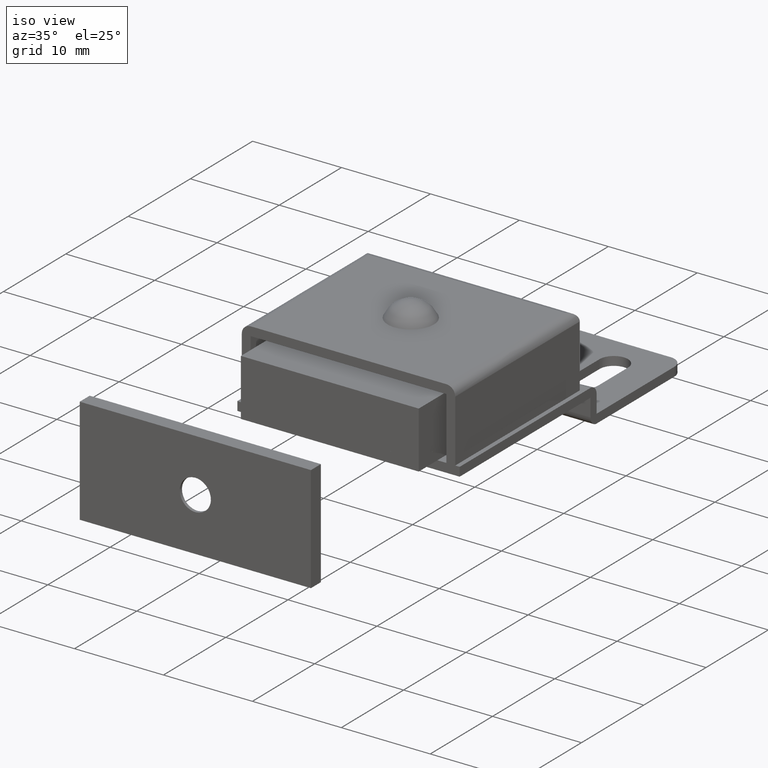
[diagram: clean part render]
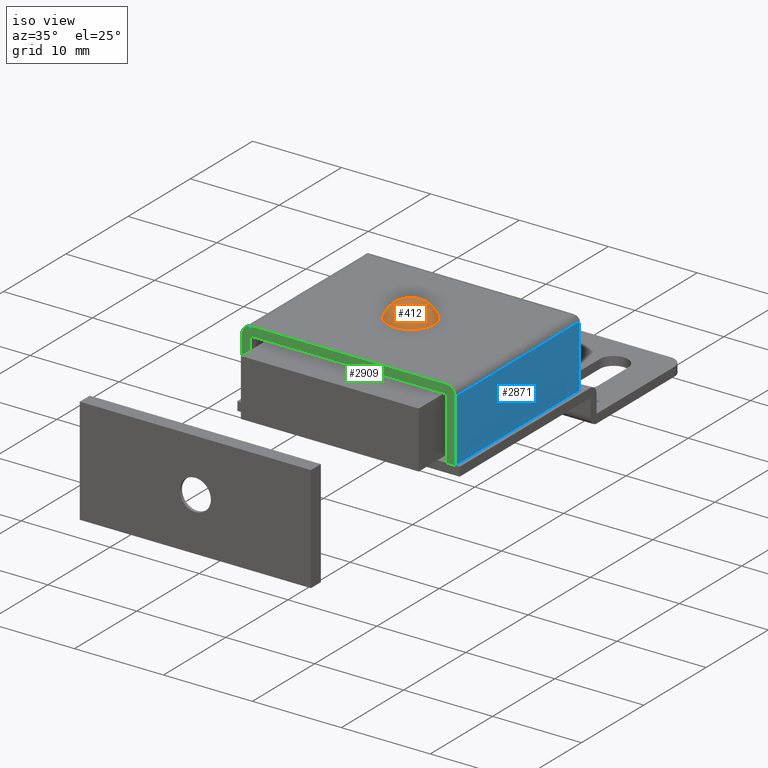
[diagram: same view with three faces highlighted in distinct colors, each labeled with its STEP entity id]
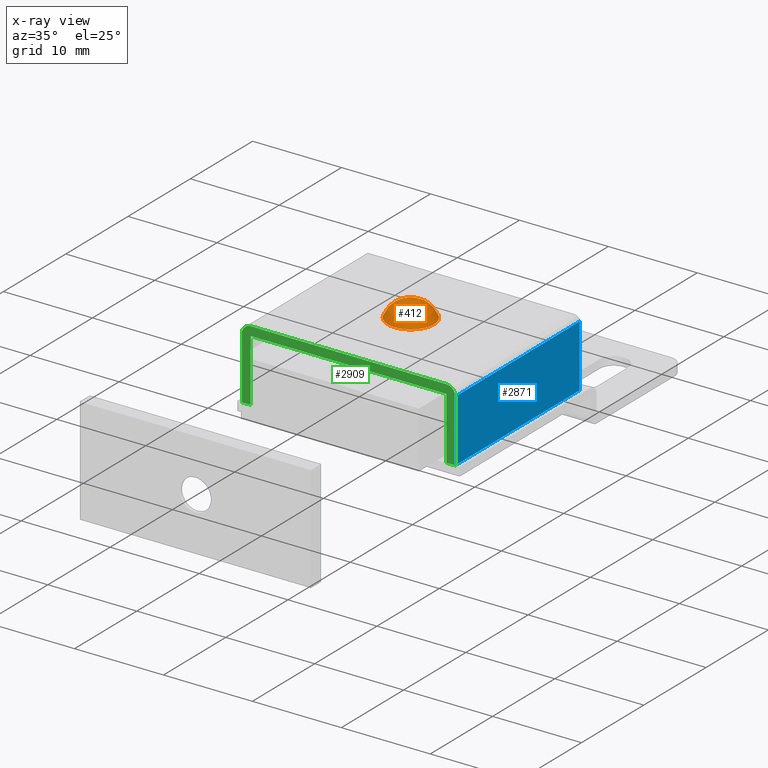
[diagram: x-ray of the same camera — body ghosted, the three highlighted faces saturated]
A machine part, iso view with three faces highlighted in distinct colors.
The next image is the same camera in x-ray (body ghosted, the three faces saturated) — at least one of them is partly hidden behind the body in this view.
Their STEP definitions:

[orange] entity #412 — the highlighted face is a freeform B-spline surface patch.
#337=CARTESIAN_POINT('',(-1.961672279362972,-27.961672279362972,10.881772758628161));
#338=CARTESIAN_POINT('',(-1.330202229374198,-28.660404458748406,11.821164523809525));
#339=CARTESIAN_POINT('',(1.330202229374198,-28.660404458748406,11.821164523809525));
#340=CARTESIAN_POINT('',(1.961672279362972,-27.961672279362972,10.881772758628161));
#341=CARTESIAN_POINT('',(-2.660404458748396,-27.330202229374212,11.821164523809525));
#342=CARTESIAN_POINT('',(-2.066147744739894,-28.066147744739890,13.800008999999999));
#343=CARTESIAN_POINT('',(2.066147744739894,-28.066147744739890,13.800008999999999));
#344=CARTESIAN_POINT('',(2.660404458748396,-27.330202229374212,11.821164523809525));
#345=CARTESIAN_POINT('',(-2.660404458748396,-24.669797770625809,11.821164523809525));
#346=CARTESIAN_POINT('',(-2.066147744739894,-23.933852255260110,13.800008999999999));
#347=CARTESIAN_POINT('',(2.066147744739894,-23.933852255260110,13.800008999999999));
#348=CARTESIAN_POINT('',(2.660404458748396,-24.669797770625809,11.821164523809525));
#349=CARTESIAN_POINT('',(-1.961672279362972,-24.038327720637024,10.881772758628161));
#350=CARTESIAN_POINT('',(-1.330202229374198,-23.339595541251612,11.821164523809525));
#351=CARTESIAN_POINT('',(1.330202229374198,-23.339595541251612,11.821164523809525));
#352=CARTESIAN_POINT('',(1.961672279362972,-24.038327720637024,10.881772758628161));
#360=(BOUNDED_SURFACE()B_SPLINE_SURFACE(2,2,((#337,#341,#345,#349),(#338,#342,#346,#350),(#339,#343,#347,#351),(#340,#344,#348,#352)),.UNSPECIFIED.,.F.,.F.,.U.)B_SPLINE_SURFACE_WITH_KNOTS((3,1,3),(3,1,3),(0.0,3.236880012032771,6.473760024065543),(0.0,3.236880012032772,6.473760024065544),.UNSPECIFIED.)GEOMETRIC_REPRESENTATION_ITEM()RATIONAL_B_SPLINE_SURFACE(((2.106516737251187,1.553258368625593,1.553258368625593,2.106516737251187),(1.553258368625593,1.0,1.0,1.553258368625593),(1.553258368625593,1.0,1.0,1.553258368625593),(2.106516737251187,1.553258368625593,1.553258368625593,2.106516737251187)))REPRESENTATION_ITEM('')SURFACE());
#361=CARTESIAN_POINT('',(2.600002846134020,-26.0,12.0));
#362=VERTEX_POINT('',#361);
#363=CARTESIAN_POINT('',(-2.600002846134020,-26.0,12.0));
#364=VERTEX_POINT('',#363);
#365=CARTESIAN_POINT('',(2.600002846134020,-26.0,12.0));
#366=CARTESIAN_POINT('',(2.600058341372681,-26.212710358650369,12.0));
#367=CARTESIAN_POINT('',(2.556678993944226,-26.563650506283778,12.0));
#368=CARTESIAN_POINT('',(2.382830372742893,-27.079280569081700,11.999999999999989));
#369=CARTESIAN_POINT('',(2.108610258732829,-27.563464833162559,12.000000000000011));
#370=CARTESIAN_POINT('',(1.726555955244505,-27.969691881072752,12.000000000000020));
#371=CARTESIAN_POINT('',(1.288476239203649,-28.274155446535921,11.999999999999980));
#372=CARTESIAN_POINT('',(0.822109303978013,-28.487812869277491,12.000000000000050));
#373=CARTESIAN_POINT('',(0.299007345518386,-28.601899646961400,11.999999999999970));
#374=CARTESIAN_POINT('',(-0.202969783398539,-28.604953132757640,12.000000000000020));
#375=CARTESIAN_POINT('',(-0.602849051018457,-28.538081735342800,11.999999999999970));
#376=CARTESIAN_POINT('',(-0.999021559997977,-28.412592625176192,12.000000000000011));
#377=CARTESIAN_POINT('',(-1.352221910869273,-28.234809892565909,12.0));
#378=CARTESIAN_POINT('',(-1.687653565748703,-27.989192088791601,12.0));
#379=CARTESIAN_POINT('',(-1.985351753835375,-27.698733699379542,12.000000000000011));
#380=CARTESIAN_POINT('',(-2.267081017393421,-27.308979508278970,12.000000000000011));
#381=CARTESIAN_POINT('',(-2.526329686500584,-26.733763208429892,11.999999999999940));
#382=CARTESIAN_POINT('',(-2.600151644365872,-26.276540743703489,12.000000000000091));
#383=CARTESIAN_POINT('',(-2.600002846134020,-26.0,12.0));
#384=B_SPLINE_CURVE_WITH_KNOTS('',3,(#365,#366,#367,#368,#369,#370,#371,#372,#373,#374,#375,#376,#377,#378,#379,#380,#381,#382,#383),.UNSPECIFIED.,.F.,.U.,(4,1,1,1,1,1,1,1,1,1,1,1,1,1,1,1,4),(0.000000075499210,0.638118043011279,1.052916488891476,1.627257169228234,2.297307948255069,2.712102531073259,3.222629510579948,3.828849651934571,4.307447050853786,4.722220400215576,5.041294236136727,5.551815457190520,5.902801246428115,6.285686626236145,6.796203863891475,7.338635703143996,8.168201092436943),.UNSPECIFIED.);
#385=EDGE_CURVE('',#362,#364,#384,.T.);
#386=ORIENTED_EDGE('',*,*,#385,.F.);
#387=CARTESIAN_POINT('',(-2.600002846134020,-26.0,12.0));
#388=CARTESIAN_POINT('',(-2.600037607767046,-25.808556572461612,11.999999999999989));
#389=CARTESIAN_POINT('',(-2.561062943993867,-25.457602084735509,12.0));
#390=CARTESIAN_POINT('',(-2.419669975537138,-25.020637875117441,12.0));
#391=CARTESIAN_POINT('',(-2.228034060433708,-24.639919067946170,11.999999999999980));
#392=CARTESIAN_POINT('',(-1.973699730919307,-24.283428301260770,12.000000000000091));
#393=CARTESIAN_POINT('',(-1.648610296586424,-23.973933242965568,12.0));
#394=CARTESIAN_POINT('',(-1.286698277114721,-23.728899131980899,12.0));
#395=CARTESIAN_POINT('',(-0.881400488092353,-23.537188392970219,12.000000000000110));
#396=CARTESIAN_POINT('',(-0.363555804739724,-23.404062482700262,11.999999999999940));
#397=CARTESIAN_POINT('',(0.160881769916948,-23.387986730833269,12.000000000000011));
#398=CARTESIAN_POINT('',(0.602849111535233,-23.461920293583059,12.000000000000020));
#399=CARTESIAN_POINT('',(0.999017140769728,-23.587413490446760,11.999999999999989));
#400=CARTESIAN_POINT('',(1.428613767831223,-23.803599928856411,12.000000000000020));
#401=CARTESIAN_POINT('',(1.819587692736324,-24.120504588734800,12.0));
#402=CARTESIAN_POINT('',(2.156046577020611,-24.520359862871359,12.000000000000011));
#403=CARTESIAN_POINT('',(2.377554611971119,-24.911402390748719,11.999999999999959));
#404=CARTESIAN_POINT('',(2.554487093929202,-25.425716985824749,12.000000000000130));
#405=CARTESIAN_POINT('',(2.600069651635152,-25.776650859666301,11.999999999999730));
#406=CARTESIAN_POINT('',(2.600002846134020,-26.0,12.0));
#407=B_SPLINE_CURVE_WITH_KNOTS('',3,(#387,#388,#389,#390,#391,#392,#393,#394,#395,#396,#397,#398,#399,#400,#401,#402,#403,#404,#405,#406),.UNSPECIFIED.,.F.,.U.,(4,1,1,1,1,1,1,1,1,1,1,1,1,1,1,1,1,4),(0.000000075482786,0.574324077012315,1.052916488878185,1.372001078730695,1.850605974464490,2.361127114526408,2.712102531063783,3.158807363876626,3.701237637747321,4.307447050847297,4.722220400209821,5.041294236131527,5.551815457186116,6.158058323132607,6.540943814068026,7.115278580784263,7.498172572092220,8.168201092436945),.UNSPECIFIED.);
#408=EDGE_CURVE('',#364,#362,#407,.T.);
#409=ORIENTED_EDGE('',*,*,#408,.F.);
#410=EDGE_LOOP('',(#386,#409));
#411=FACE_OUTER_BOUND('',#410,.T.);
#412=ADVANCED_FACE('',(#411),#360,.T.);

[blue] entity #2871 — the highlighted face is a freeform B-spline surface patch.
#2378=CARTESIAN_POINT('',(12.0,-16.0,4.0));
#2379=VERTEX_POINT('',#2378);
#2394=CARTESIAN_POINT('',(12.0,-16.0,11.0));
#2395=VERTEX_POINT('',#2394);
#2401=CARTESIAN_POINT('',(12.0,-16.0,11.0));
#2402=CARTESIAN_POINT('',(12.0,-16.0,4.0));
#2403=QUASI_UNIFORM_CURVE('',1,(#2401,#2402),.UNSPECIFIED.,.F.,.U.);
#2404=EDGE_CURVE('',#2395,#2379,#2403,.T.);
#2450=CARTESIAN_POINT('',(12.0,-36.0,4.0));
#2451=VERTEX_POINT('',#2450);
#2452=CARTESIAN_POINT('',(12.0,-16.0,4.0));
#2453=CARTESIAN_POINT('',(12.0,-36.0,4.0));
#2454=QUASI_UNIFORM_CURVE('',1,(#2452,#2453),.UNSPECIFIED.,.F.,.U.);
#2455=EDGE_CURVE('',#2379,#2451,#2454,.T.);
#2721=CARTESIAN_POINT('',(12.0,-36.0,11.0));
#2722=VERTEX_POINT('',#2721);
#2738=CARTESIAN_POINT('',(12.0,-16.0,11.0));
#2739=CARTESIAN_POINT('',(12.0,-36.0,11.0));
#2740=QUASI_UNIFORM_CURVE('',1,(#2738,#2739),.UNSPECIFIED.,.F.,.U.);
#2741=EDGE_CURVE('',#2395,#2722,#2740,.T.);
#2856=CARTESIAN_POINT('',(12.0,-36.998999961236123,11.349649986432640));
#2857=CARTESIAN_POINT('',(12.0,-15.000999502322079,11.349649986432640));
#2858=CARTESIAN_POINT('',(12.0,-36.998999961236123,3.650349825812728));
#2859=CARTESIAN_POINT('',(12.0,-15.000999502322079,3.650349825812728));
#2860=B_SPLINE_SURFACE_WITH_KNOTS('',1,1,((#2856,#2858),(#2857,#2859)),.UNSPECIFIED.,.F.,.F.,.U.,(2,2),(2,2),(0.0,21.998000458914039),(0.0,7.699300160619914),.UNSPECIFIED.);
#2861=ORIENTED_EDGE('',*,*,#2404,.F.);
#2862=ORIENTED_EDGE('',*,*,#2741,.T.);
#2863=CARTESIAN_POINT('',(12.0,-36.0,4.0));
#2864=CARTESIAN_POINT('',(12.0,-36.0,11.0));
#2865=QUASI_UNIFORM_CURVE('',1,(#2863,#2864),.UNSPECIFIED.,.F.,.U.);
#2866=EDGE_CURVE('',#2451,#2722,#2865,.T.);
#2867=ORIENTED_EDGE('',*,*,#2866,.F.);
#2868=ORIENTED_EDGE('',*,*,#2455,.F.);
#2869=EDGE_LOOP('',(#2861,#2862,#2867,#2868));
#2870=FACE_OUTER_BOUND('',#2869,.T.);
#2871=ADVANCED_FACE('',(#2870),#2860,.F.);

[green] entity #2909 — the highlighted face is a freeform B-spline surface patch.
#2442=CARTESIAN_POINT('',(11.0,-36.0,4.0));
#2443=VERTEX_POINT('',#2442);
#2450=CARTESIAN_POINT('',(12.0,-36.0,4.0));
#2451=VERTEX_POINT('',#2450);
#2457=CARTESIAN_POINT('',(12.0,-36.0,4.0));
#2458=CARTESIAN_POINT('',(11.0,-36.0,4.0));
#2459=QUASI_UNIFORM_CURVE('',1,(#2457,#2458),.UNSPECIFIED.,.F.,.U.);
#2460=EDGE_CURVE('',#2451,#2443,#2459,.T.);
#2676=CARTESIAN_POINT('',(-11.000001999999940,-36.0,12.0));
#2677=VERTEX_POINT('',#2676);
#2678=CARTESIAN_POINT('',(-12.000002000000000,-36.0,11.0));
#2679=VERTEX_POINT('',#2678);
#2680=CARTESIAN_POINT('',(-11.000001999999940,-36.0,12.0));
#2681=CARTESIAN_POINT('',(-11.081814594807661,-35.999999999999993,12.000020408934610));
#2682=CARTESIAN_POINT('',(-11.220884380248281,-36.000000000000007,11.982831857641290));
#2683=CARTESIAN_POINT('',(-11.415008119807830,-36.000000000000007,11.916051346837850));
#2684=CARTESIAN_POINT('',(-11.572368746560389,-35.999999999999972,11.826905169898611));
#2685=CARTESIAN_POINT('',(-11.716878913881059,-36.000000000000099,11.705309614131130));
#2686=CARTESIAN_POINT('',(-11.847273958373471,-35.999999999999957,11.546450259949500));
#2687=CARTESIAN_POINT('',(-11.965875624697500,-36.000000000000021,11.310839768075679));
#2688=CARTESIAN_POINT('',(-12.000089556016420,-36.000000000000007,11.114548889117071));
#2689=CARTESIAN_POINT('',(-12.000002000000000,-36.0,11.0));
#2690=B_SPLINE_CURVE_WITH_KNOTS('',3,(#2680,#2681,#2682,#2683,#2684,#2685,#2686,#2687,#2688,#2689),.UNSPECIFIED.,.F.,.U.,(4,1,1,1,1,1,1,4),(0.000000014778806,0.245437640393745,0.417254423383799,0.613609555557580,0.785417879556717,0.981767531972485,1.227217482293383,1.570835744334741),.UNSPECIFIED.);
#2691=EDGE_CURVE('',#2677,#2679,#2690,.T.);
#2721=CARTESIAN_POINT('',(12.0,-36.0,11.0));
#2722=VERTEX_POINT('',#2721);
#2723=CARTESIAN_POINT('',(11.0,-36.0,12.0));
#2724=VERTEX_POINT('',#2723);
#2725=CARTESIAN_POINT('',(12.0,-36.0,11.0));
#2726=CARTESIAN_POINT('',(12.0,-36.0,12.0));
#2727=CARTESIAN_POINT('',(11.0,-36.0,12.0));
#2735=(BOUNDED_CURVE()B_SPLINE_CURVE(2,(#2725,#2726,#2727),.UNSPECIFIED.,.F.,.U.)CURVE()GEOMETRIC_REPRESENTATION_ITEM()QUASI_UNIFORM_CURVE()RATIONAL_B_SPLINE_CURVE((1.0,0.707106781186548,1.0))REPRESENTATION_ITEM(''));
#2736=EDGE_CURVE('',#2722,#2724,#2735,.T.);
#2757=CARTESIAN_POINT('',(11.0,-36.0,11.0));
#2758=VERTEX_POINT('',#2757);
#2759=CARTESIAN_POINT('',(11.0,-36.0,11.0));
#2760=CARTESIAN_POINT('',(11.0,-36.0,4.0));
#2761=QUASI_UNIFORM_CURVE('',1,(#2759,#2760),.UNSPECIFIED.,.F.,.U.);
#2762=EDGE_CURVE('',#2758,#2443,#2761,.T.);
#2779=CARTESIAN_POINT('',(-11.000002000000000,-36.0,11.0));
#2780=VERTEX_POINT('',#2779);
#2781=CARTESIAN_POINT('',(-11.000002000000000,-36.0,11.0));
#2782=CARTESIAN_POINT('',(11.0,-36.0,11.0));
#2783=QUASI_UNIFORM_CURVE('',1,(#2781,#2782),.UNSPECIFIED.,.F.,.U.);
#2784=EDGE_CURVE('',#2780,#2758,#2783,.T.);
#2805=CARTESIAN_POINT('',(-11.000002000000000,-36.0,4.0));
#2806=VERTEX_POINT('',#2805);
#2807=CARTESIAN_POINT('',(-11.000002000000000,-36.0,4.0));
#2808=CARTESIAN_POINT('',(-11.000002000000000,-36.0,11.0));
#2809=QUASI_UNIFORM_CURVE('',1,(#2807,#2808),.UNSPECIFIED.,.F.,.U.);
#2810=EDGE_CURVE('',#2806,#2780,#2809,.T.);
#2833=CARTESIAN_POINT('',(-12.000001999999959,-36.0,4.0));
#2834=VERTEX_POINT('',#2833);
#2835=CARTESIAN_POINT('',(-12.000001999999959,-36.0,4.0));
#2836=CARTESIAN_POINT('',(-12.000002000000000,-36.0,11.0));
#2837=QUASI_UNIFORM_CURVE('',1,(#2835,#2836),.UNSPECIFIED.,.F.,.U.);
#2838=EDGE_CURVE('',#2834,#2679,#2837,.T.);
#2863=CARTESIAN_POINT('',(12.0,-36.0,4.0));
#2864=CARTESIAN_POINT('',(12.0,-36.0,11.0));
#2865=QUASI_UNIFORM_CURVE('',1,(#2863,#2864),.UNSPECIFIED.,.F.,.U.);
#2866=EDGE_CURVE('',#2451,#2722,#2865,.T.);
#2877=CARTESIAN_POINT('',(11.0,-36.0,12.0));
#2878=CARTESIAN_POINT('',(-11.000001999999940,-36.0,12.0));
#2879=QUASI_UNIFORM_CURVE('',1,(#2877,#2878),.UNSPECIFIED.,.F.,.U.);
#2880=EDGE_CURVE('',#2724,#2677,#2879,.T.);
#2888=CARTESIAN_POINT('',(-13.198802053383339,-36.0,12.399599984494451));
#2889=CARTESIAN_POINT('',(-13.198802053383339,-36.0,3.600399800928832));
#2890=CARTESIAN_POINT('',(13.198800697113560,-36.0,12.399599984494451));
#2891=CARTESIAN_POINT('',(13.198800697113560,-36.0,3.600399800928832));
#2892=B_SPLINE_SURFACE_WITH_KNOTS('',1,1,((#2888,#2890),(#2889,#2891)),.UNSPECIFIED.,.F.,.F.,.U.,(2,2),(2,2),(0.0,8.799200183565615),(0.0,26.397602750496890),.UNSPECIFIED.);
#2893=ORIENTED_EDGE('',*,*,#2866,.T.);
#2894=ORIENTED_EDGE('',*,*,#2736,.T.);
#2895=ORIENTED_EDGE('',*,*,#2880,.T.);
#2896=ORIENTED_EDGE('',*,*,#2691,.T.);
#2897=ORIENTED_EDGE('',*,*,#2838,.F.);
#2898=CARTESIAN_POINT('',(-11.000002000000000,-36.0,4.0));
#2899=CARTESIAN_POINT('',(-12.000001999999959,-36.0,4.0));
#2900=QUASI_UNIFORM_CURVE('',1,(#2898,#2899),.UNSPECIFIED.,.F.,.U.);
#2901=EDGE_CURVE('',#2806,#2834,#2900,.T.);
#2902=ORIENTED_EDGE('',*,*,#2901,.F.);
#2903=ORIENTED_EDGE('',*,*,#2810,.T.);
#2904=ORIENTED_EDGE('',*,*,#2784,.T.);
#2905=ORIENTED_EDGE('',*,*,#2762,.T.);
#2906=ORIENTED_EDGE('',*,*,#2460,.F.);
#2907=EDGE_LOOP('',(#2893,#2894,#2895,#2896,#2897,#2902,#2903,#2904,#2905,#2906));
#2908=FACE_OUTER_BOUND('',#2907,.T.);
#2909=ADVANCED_FACE('',(#2908),#2892,.T.);